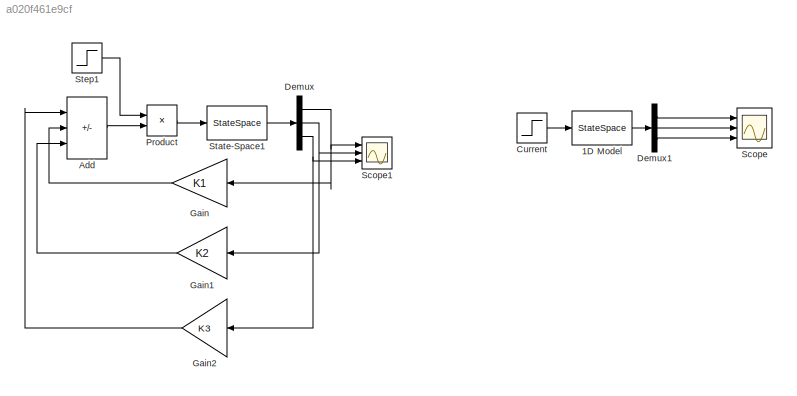
MODEL slx_a020f461e9cf
KIND model
CONFIG AbsTol = auto
CONFIG EnableMultiTasking = off
CONFIG FixedStep = auto
CONFIG MaxStep = auto
CONFIG MinStep = auto
CONFIG RelTol = 1e-3
CONFIG SampleTimeConstraint = Unconstrained
CONFIG SolverName = VariableStepAuto
CONFIG StartTime = 0.0
CONFIG StopTime = 3
BLOCK [StateSpace] 1D Model
  A = A
  B = B
  C = [1 0 0; 0 1 0; 0 0 1]
  D = [0; 0; 0]
  InitialCondition = [-pi/30; 0; 0]
  Ports = [1, 1]
BLOCK [Sum] Add
  IconShape = rectangular
  Inputs = ---
  Ports = [3, 1]
BLOCK [Step] Current
  After = 12
  SampleTime = 0
  Time = 0
BLOCK [Demux] Demux
  Outputs = 3
  Ports = [1, 3]
BLOCK [Demux] Demux1
  Outputs = 3
  Ports = [1, 3]
BLOCK [Gain] Gain
  Gain = K1
BLOCK [Gain] Gain1
  Gain = K2
BLOCK [Gain] Gain2
  Gain = K3
BLOCK [Product] Product
  Ports = [2, 1]
BLOCK [Scope] Scope
  Floating = off
  NumInputPorts = 3
  Ports = [3]
  ScopeSpecificationString = Simulink.scopes.TimeScopeBlockCfg('CurrentConfiguration', extmgr.ConfigurationSet(extmgr.Configuration('Core','General UI',true,'FigureColor',[1 1 1]),extmgr.Configuration('Core','Source UI',true),extmgr.Configuration('Sources','WiredSimulink',true,'DataLoggingVariableName','ScopeData1'),extmgr.Configuration('Visuals','Time Domain',true,'SerializedDisplays',{struct('MinYLimReal','-24259218439.3134...<+3466ch>
BLOCK [Scope] Scope1
  Floating = off
  NumInputPorts = 3
  Ports = [3]
  ScopeSpecificationString = Simulink.scopes.TimeScopeBlockCfg('CurrentConfiguration', extmgr.ConfigurationSet(extmgr.Configuration('Core','General UI',true,'FigureColor',[1 1 1]),extmgr.Configuration('Core','Source UI',true),extmgr.Configuration('Sources','WiredSimulink',true,'DataLoggingVariableName','ScopeData1'),extmgr.Configuration('Visuals','Time Domain',true,'SerializedDisplays',{struct('MinYLimReal','-0.11961','MaxYLi...<+3405ch>
BLOCK [StateSpace] State-Space1
  A = A
  B = B
  C = [1 0 0; 0 1 0; 0 0 1]
  D = [0; 0; 0]
  InitialCondition = [-pi/30; 0; 0]
  Ports = [1, 1]
BLOCK [Step] Step1
  After = 12
  SampleTime = 0
  Time = 0
LINE 1D Model:1 -> Demux1:1
LINE Add:1 -> Product:2
LINE Current:1 -> 1D Model:1
LINE Demux1:1 -> Scope:1
LINE Demux1:2 -> Scope:2
LINE Demux1:3 -> Scope:3
NET Demux:1 -> Gain:1, Scope1:1
NET Demux:2 -> Gain1:1, Scope1:2
NET Demux:3 -> Gain2:1, Scope1:3
LINE Gain1:1 -> Add:3
LINE Gain2:1 -> Add:1
LINE Gain:1 -> Add:2
LINE Product:1 -> State-Space1:1
LINE State-Space1:1 -> Demux:1
LINE Step1:1 -> Product:1
note: NET lines group one-source signal fan-out (src -> all destinations, sorted); 1:1 wires keep LINE
